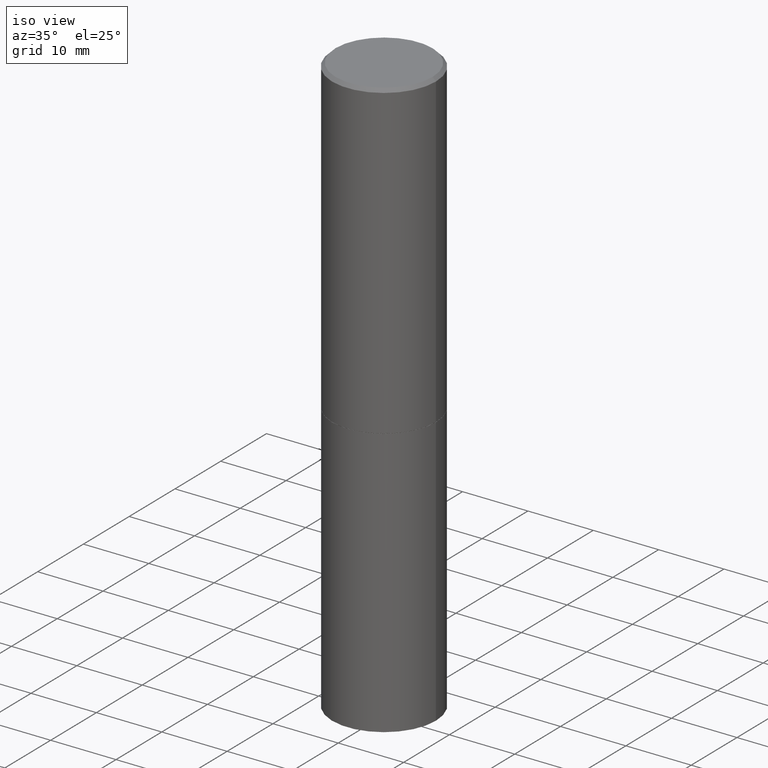
[diagram: clean part render]
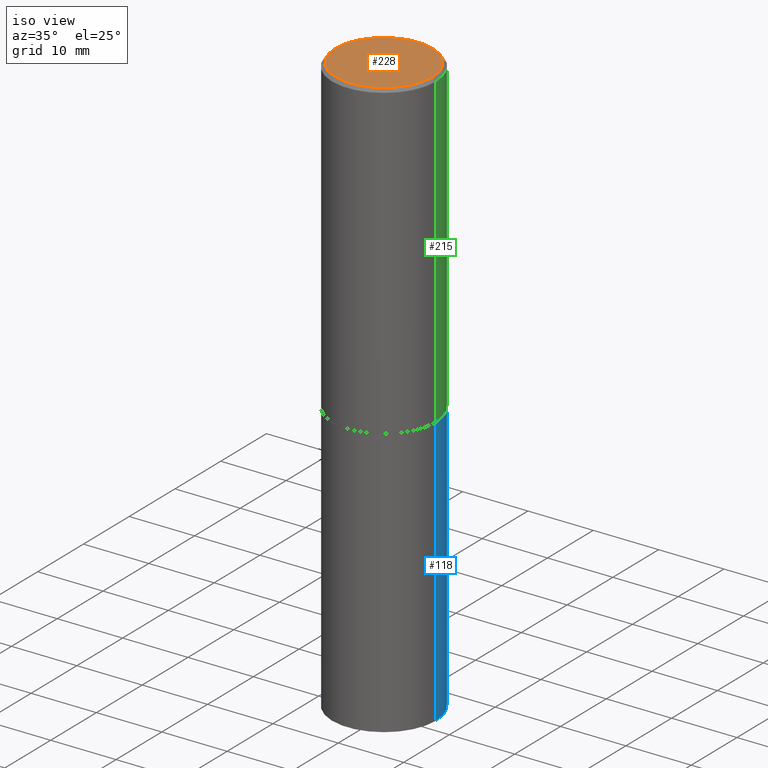
[diagram: same view with three faces highlighted in distinct colors, each labeled with its STEP entity id]
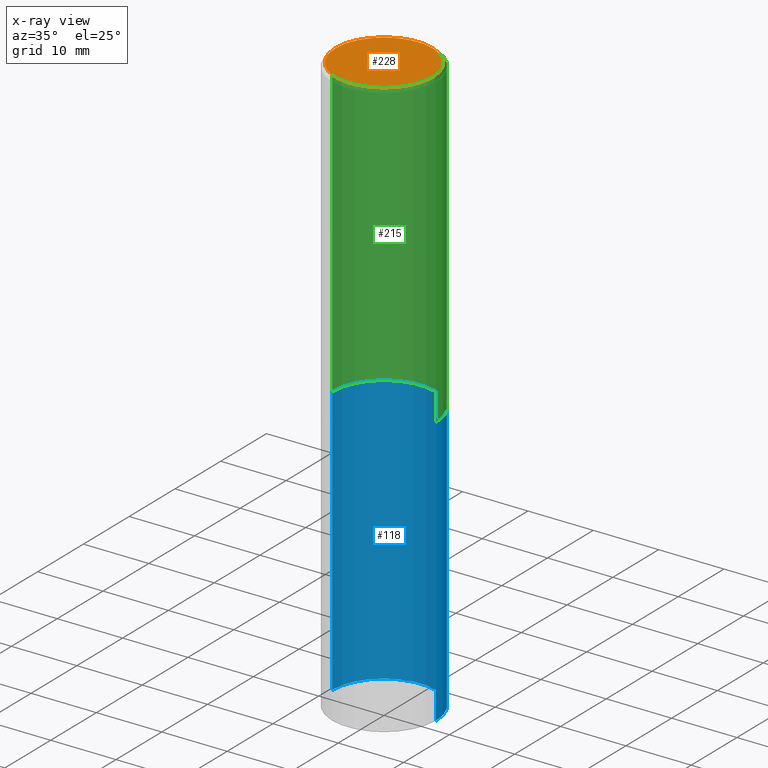
[diagram: x-ray of the same camera — body ghosted, the three highlighted faces saturated]
A machine part, iso view with three faces highlighted in distinct colors.
The next image is the same camera in x-ray (body ghosted, the three faces saturated) — at least one of them is partly hidden behind the body in this view.
Their STEP definitions:

[orange] entity #228 — the highlighted planar face has unit normal (0, -0, -1).
#49 = EDGE_LOOP ( 'NONE', ( #306, #206 ) ) ;
#50 = PLANE ( 'NONE',  #426 ) ;
#51 = VERTEX_POINT ( 'NONE', #79 ) ;
#52 = DIRECTION ( 'NONE',  ( -2.445468806185136597E-29, 3.491481338843145583E-15, 1.000000000000000000 ) ) ;
#79 = CARTESIAN_POINT ( 'NONE',  ( 0.2924999999999997047, -2.110215457714317959E-15, 4.268512490114932791E-18 ) ) ;
#82 = CARTESIAN_POINT ( 'NONE',  ( 2.042516583223230567E-15, 0.2924999999999997047, -1.019124035366569015E-15 ) ) ;
#121 = VERTEX_POINT ( 'NONE', #392 ) ;
#162 = EDGE_CURVE ( 'NONE', #51, #121, #393, .T. ) ;
#183 = CIRCLE ( 'NONE', #194, 0.2924999999999997047 ) ;
#188 = AXIS2_PLACEMENT_3D ( 'NONE', #323, #326, #288 ) ;
#194 = AXIS2_PLACEMENT_3D ( 'NONE', #219, #52, #327 ) ;
#206 = ORIENTED_EDGE ( 'NONE', *, *, #162, .T. ) ;
#219 = CARTESIAN_POINT ( 'NONE',  ( -1.043851414335219820E-46, 1.490343170380447200E-32, 4.268512490100411279E-18 ) ) ;
#223 = DIRECTION ( 'NONE',  ( 2.438088387897960049E-29, -3.491481338843145188E-15, -1.000000000000000000 ) ) ;
#227 = DIRECTION ( 'NONE',  ( -1.000000000000000000, 6.982962677686265922E-15, -4.876176775795935793E-29 ) ) ;
#228 = ADVANCED_FACE ( 'NONE', ( #352 ), #50, .F. ) ;
#239 = EDGE_CURVE ( 'NONE', #121, #51, #183, .T. ) ;
#288 = DIRECTION ( 'NONE',  ( 1.000000000000000000, -6.982962677686266711E-15, 4.876067333457694521E-29 ) ) ;
#306 = ORIENTED_EDGE ( 'NONE', *, *, #239, .T. ) ;
#323 = CARTESIAN_POINT ( 'NONE',  ( -1.043851414335219820E-46, 1.490343170380447200E-32, 4.268512490100411279E-18 ) ) ;
#326 = DIRECTION ( 'NONE',  ( -2.445468806185136597E-29, 3.491481338843145583E-15, 1.000000000000000000 ) ) ;
#327 = DIRECTION ( 'NONE',  ( 1.000000000000000000, -6.982962677686266711E-15, 4.876067333457694521E-29 ) ) ;
#352 = FACE_OUTER_BOUND ( 'NONE', #49, .T. ) ;
#392 = CARTESIAN_POINT ( 'NONE',  ( -0.2924999999999997047, 2.077431396611662216E-15, 4.268512490086005323E-18 ) ) ;
#393 = CIRCLE ( 'NONE', #188, 0.2924999999999997047 ) ;
#426 = AXIS2_PLACEMENT_3D ( 'NONE', #82, #223, #227 ) ;

[blue] entity #118 — the highlighted cylindrical surface (partial cylindrical patch) has radius 7.9375 mm, axis along (-0, 0, 1).
#14 = CYLINDRICAL_SURFACE ( 'NONE', #175, 0.3125000000000000000 ) ;
#20 = EDGE_CURVE ( 'NONE', #55, #309, #299, .T. ) ;
#34 = FACE_OUTER_BOUND ( 'NONE', #258, .T. ) ;
#38 = VERTEX_POINT ( 'NONE', #208 ) ;
#55 = VERTEX_POINT ( 'NONE', #319 ) ;
#56 = LINE ( 'NONE', #84, #358 ) ;
#64 = CARTESIAN_POINT ( 'NONE',  ( 4.585254011597130558E-29, -6.546527510330897918E-15, -1.874999999999999778 ) ) ;
#65 = AXIS2_PLACEMENT_3D ( 'NONE', #64, #272, #242 ) ;
#84 = CARTESIAN_POINT ( 'NONE',  ( 0.3125000000000000000, -2.182175836776958347E-15, 1.523805242436230075E-29 ) ) ;
#88 = CIRCLE ( 'NONE', #318, 0.3125000000000000000 ) ;
#92 = DIRECTION ( 'NONE',  ( -2.445468806185136597E-29, 3.491481338843145583E-15, 1.000000000000000000 ) ) ;
#118 = ADVANCED_FACE ( 'NONE', ( #34 ), #14, .T. ) ;
#119 = ORIENTED_EDGE ( 'NONE', *, *, #20, .F. ) ;
#125 = DIRECTION ( 'NONE',  ( -2.445468806185136877E-29, 3.491481338843145188E-15, 1.000000000000000000 ) ) ;
#128 = VECTOR ( 'NONE', #425, 39.37007874015748143 ) ;
#134 = CARTESIAN_POINT ( 'NONE',  ( -0.3125000000000000000, -7.162910048890640155E-15, -1.874999999999999778 ) ) ;
#149 = EDGE_CURVE ( 'NONE', #38, #153, #88, .T. ) ;
#153 = VERTEX_POINT ( 'NONE', #284 ) ;
#154 = CARTESIAN_POINT ( 'NONE',  ( 8.559140821647976968E-29, -1.222018468595100934E-14, -3.500000000000000000 ) ) ;
#155 = CARTESIAN_POINT ( 'NONE',  ( -0.3125000000000000000, 2.220446049250313081E-15, -1.537167215704658232E-29 ) ) ;
#161 = CARTESIAN_POINT ( 'NONE',  ( 0.000000000000000000, 0.000000000000000000, 0.000000000000000000 ) ) ;
#168 = EDGE_CURVE ( 'NONE', #153, #309, #429, .T. ) ;
#175 = AXIS2_PLACEMENT_3D ( 'NONE', #161, #255, #187 ) ;
#184 = EDGE_CURVE ( 'NONE', #38, #55, #56, .T. ) ;
#187 = DIRECTION ( 'NONE',  ( 1.000000000000000000, -6.982962677686266711E-15, 4.876176775795936353E-29 ) ) ;
#208 = CARTESIAN_POINT ( 'NONE',  ( 0.3125000000000000000, -1.440236052272796769E-14, -3.500000000000000000 ) ) ;
#209 = ORIENTED_EDGE ( 'NONE', *, *, #168, .T. ) ;
#242 = DIRECTION ( 'NONE',  ( 1.000000000000000000, -6.982962677686265133E-15, 0.000000000000000000 ) ) ;
#255 = DIRECTION ( 'NONE',  ( -2.445468806185136597E-29, 3.491481338843145583E-15, 1.000000000000000000 ) ) ;
#258 = EDGE_LOOP ( 'NONE', ( #267, #209, #119, #283 ) ) ;
#267 = ORIENTED_EDGE ( 'NONE', *, *, #149, .T. ) ;
#272 = DIRECTION ( 'NONE',  ( -2.445468806185136597E-29, 3.491481338843145583E-15, 1.000000000000000000 ) ) ;
#283 = ORIENTED_EDGE ( 'NONE', *, *, #184, .F. ) ;
#284 = CARTESIAN_POINT ( 'NONE',  ( -0.3125000000000000000, -7.162910048890640155E-15, -3.500000000000000000 ) ) ;
#299 = CIRCLE ( 'NONE', #65, 0.3125000000000000000 ) ;
#309 = VERTEX_POINT ( 'NONE', #134 ) ;
#318 = AXIS2_PLACEMENT_3D ( 'NONE', #154, #92, #322 ) ;
#319 = CARTESIAN_POINT ( 'NONE',  ( 0.3125000000000000000, -8.728703347107855476E-15, -1.874999999999999778 ) ) ;
#322 = DIRECTION ( 'NONE',  ( 1.000000000000000000, -6.982962677686269077E-15, 0.000000000000000000 ) ) ;
#358 = VECTOR ( 'NONE', #125, 39.37007874015748143 ) ;
#425 = DIRECTION ( 'NONE',  ( -2.445468806185136877E-29, 3.491481338843145188E-15, 1.000000000000000000 ) ) ;
#429 = LINE ( 'NONE', #155, #128 ) ;

[green] entity #215 — the highlighted cylindrical surface (partial cylindrical patch) has radius 7.9375 mm, axis along (-0, 0, 1).
#4 = CIRCLE ( 'NONE', #59, 0.3125000000000000000 ) ;
#11 = LINE ( 'NONE', #280, #111 ) ;
#23 = VERTEX_POINT ( 'NONE', #378 ) ;
#35 = ORIENTED_EDGE ( 'NONE', *, *, #37, .T. ) ;
#37 = EDGE_CURVE ( 'NONE', #423, #382, #11, .T. ) ;
#59 = AXIS2_PLACEMENT_3D ( 'NONE', #120, #186, #250 ) ;
#62 = VECTOR ( 'NONE', #333, 39.37007874015748143 ) ;
#68 = AXIS2_PLACEMENT_3D ( 'NONE', #123, #220, #192 ) ;
#87 = CYLINDRICAL_SURFACE ( 'NONE', #68, 0.3124999999999998890 ) ;
#111 = VECTOR ( 'NONE', #117, 39.37007874015748143 ) ;
#117 = DIRECTION ( 'NONE',  ( -2.445468806185136877E-29, 3.491481338843145188E-15, 1.000000000000000000 ) ) ;
#120 = CARTESIAN_POINT ( 'NONE',  ( 4.582808542790944955E-29, -6.543036028992054122E-15, -1.873999999999999666 ) ) ;
#123 = CARTESIAN_POINT ( 'NONE',  ( 0.000000000000000000, 0.000000000000000000, 0.000000000000000000 ) ) ;
#130 = EDGE_CURVE ( 'NONE', #374, #423, #4, .T. ) ;
#157 = CARTESIAN_POINT ( 'NONE',  ( 4.890937612370288923E-31, -6.982962677686312563E-17, -0.02000000000000006287 ) ) ;
#172 = ORIENTED_EDGE ( 'NONE', *, *, #286, .F. ) ;
#186 = DIRECTION ( 'NONE',  ( -2.445468806185136597E-29, 3.491481338843145583E-15, 1.000000000000000000 ) ) ;
#192 = DIRECTION ( 'NONE',  ( 1.000000000000000000, -6.982962677686266711E-15, 4.876176775795935232E-29 ) ) ;
#215 = ADVANCED_FACE ( 'NONE', ( #287 ), #87, .T. ) ;
#218 = AXIS2_PLACEMENT_3D ( 'NONE', #157, #225, #359 ) ;
#220 = DIRECTION ( 'NONE',  ( -2.445468806185136597E-29, 3.491481338843145583E-15, 1.000000000000000000 ) ) ;
#225 = DIRECTION ( 'NONE',  ( -2.445468806185136597E-29, 3.491481338843145583E-15, 1.000000000000000000 ) ) ;
#232 = CARTESIAN_POINT ( 'NONE',  ( 0.3125000000000000000, -8.725211865769012469E-15, -1.873999999999999666 ) ) ;
#238 = ORIENTED_EDGE ( 'NONE', *, *, #130, .T. ) ;
#245 = CIRCLE ( 'NONE', #218, 0.3124999999999997224 ) ;
#250 = DIRECTION ( 'NONE',  ( 1.000000000000000000, -6.982962677686265133E-15, 0.000000000000000000 ) ) ;
#259 = CARTESIAN_POINT ( 'NONE',  ( -0.3125000000000000000, -1.085986778634144643E-15, -1.873999999999999666 ) ) ;
#276 = EDGE_LOOP ( 'NONE', ( #238, #35, #172, #405 ) ) ;
#280 = CARTESIAN_POINT ( 'NONE',  ( -0.3124999999999998890, 2.220446049250312292E-15, -1.537167215704657391E-29 ) ) ;
#286 = EDGE_CURVE ( 'NONE', #23, #382, #245, .T. ) ;
#287 = FACE_OUTER_BOUND ( 'NONE', #276, .T. ) ;
#333 = DIRECTION ( 'NONE',  ( -2.445468806185136877E-29, 3.491481338843145188E-15, 1.000000000000000000 ) ) ;
#337 = LINE ( 'NONE', #366, #62 ) ;
#359 = DIRECTION ( 'NONE',  ( 1.000000000000000000, -6.982962677686266711E-15, 0.000000000000000000 ) ) ;
#366 = CARTESIAN_POINT ( 'NONE',  ( 0.3124999999999998890, -2.182175836776957558E-15, 1.523805242436229235E-29 ) ) ;
#374 = VERTEX_POINT ( 'NONE', #232 ) ;
#378 = CARTESIAN_POINT ( 'NONE',  ( 0.3124999999999997224, -2.213735251080464939E-15, -0.02000000000000006287 ) ) ;
#382 = VERTEX_POINT ( 'NONE', #401 ) ;
#396 = EDGE_CURVE ( 'NONE', #374, #23, #337, .T. ) ;
#401 = CARTESIAN_POINT ( 'NONE',  ( -0.3124999999999997224, 2.112346210000093471E-15, -0.02000000000000006287 ) ) ;
#405 = ORIENTED_EDGE ( 'NONE', *, *, #396, .F. ) ;
#423 = VERTEX_POINT ( 'NONE', #259 ) ;